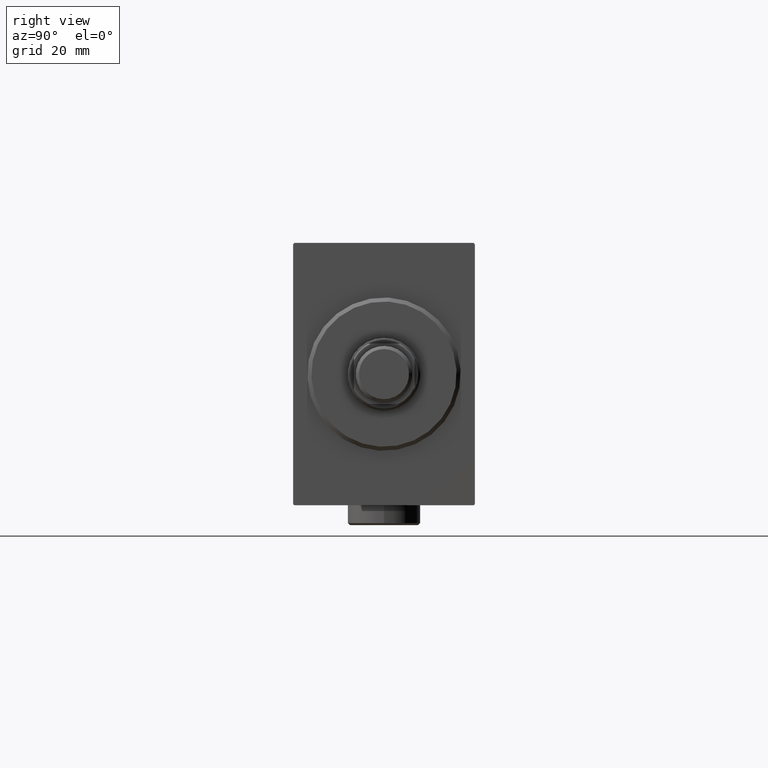
[diagram: clean part render]
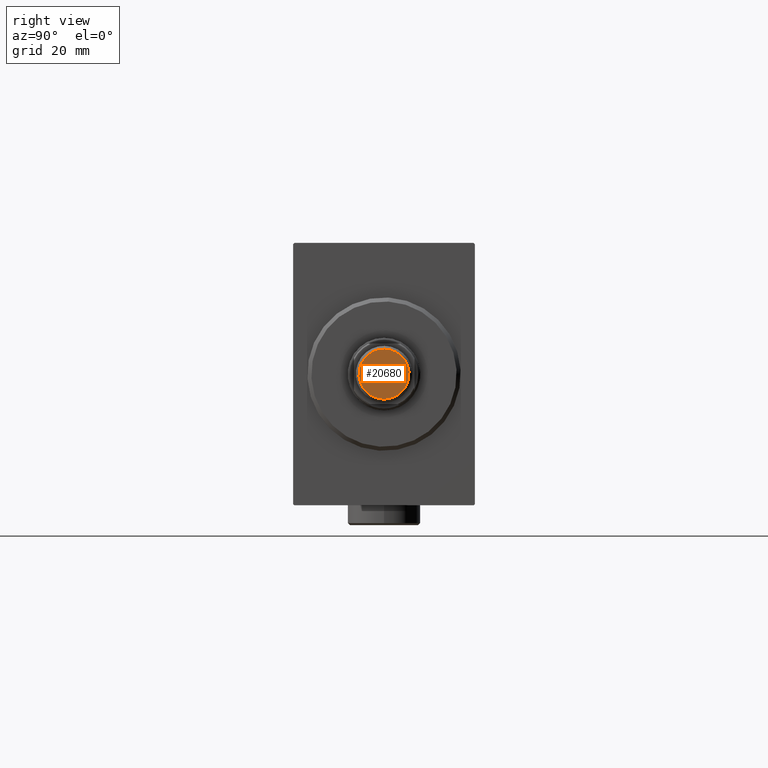
[diagram: same view with one face highlighted and labeled with its STEP entity id]
A machine part, right view. The second image highlights one B-rep face of the part: STEP entity #20680.
In plain terms, the highlighted planar face has unit normal (-1, -0, 0).
Its self-contained STEP definition (entity closure, byte-faithful):
#259 = CARTESIAN_POINT ( 'NONE',  ( 6.199999999999999289, 0.000000000000000000, 0.000000000000000000 ) ) ;
#2904 = AXIS2_PLACEMENT_3D ( 'NONE', #42087, #24580, #4384 ) ;
#4384 = DIRECTION ( 'NONE',  ( 1.000000000000000000, 0.000000000000000000, 0.000000000000000000 ) ) ;
#5267 = CARTESIAN_POINT ( 'NONE',  ( 0.000000000000000000, 0.000000000000000000, 0.000000000000000000 ) ) ;
#5933 = CARTESIAN_POINT ( 'NONE',  ( 0.000000000000000000, 0.000000000000000000, 0.000000000000000000 ) ) ;
#7809 = ORIENTED_EDGE ( 'NONE', *, *, #16563, .T. ) ;
#9639 = AXIS2_PLACEMENT_3D ( 'NONE', #5267, #36250, #18955 ) ;
#11372 = VERTEX_POINT ( 'NONE', #33092 ) ;
#15364 = PLANE ( 'NONE',  #9639 ) ;
#16563 = EDGE_CURVE ( 'NONE', #11372, #24888, #32864, .T. ) ;
#18955 = DIRECTION ( 'NONE',  ( 1.000000000000000000, 0.000000000000000000, -0.000000000000000000 ) ) ;
#19619 = DIRECTION ( 'NONE',  ( 1.000000000000000000, 0.000000000000000000, 0.000000000000000000 ) ) ;
#20680 = ADVANCED_FACE ( 'NONE', ( #43426 ), #15364, .F. ) ;
#24580 = DIRECTION ( 'NONE',  ( -0.000000000000000000, -0.000000000000000000, -1.000000000000000000 ) ) ;
#24888 = VERTEX_POINT ( 'NONE', #259 ) ;
#32864 = CIRCLE ( 'NONE', #38571, 6.199999999999999289 ) ;
#33092 = CARTESIAN_POINT ( 'NONE',  ( -6.199999999999999289, 8.082668874372528061E-16, 0.000000000000000000 ) ) ;
#35818 = DIRECTION ( 'NONE',  ( -0.000000000000000000, -0.000000000000000000, -1.000000000000000000 ) ) ;
#36250 = DIRECTION ( 'NONE',  ( 0.000000000000000000, 0.000000000000000000, 1.000000000000000000 ) ) ;
#38571 = AXIS2_PLACEMENT_3D ( 'NONE', #5933, #35818, #19619 ) ;
#38729 = CIRCLE ( 'NONE', #2904, 6.199999999999999289 ) ;
#39180 = ORIENTED_EDGE ( 'NONE', *, *, #40572, .T. ) ;
#40572 = EDGE_CURVE ( 'NONE', #24888, #11372, #38729, .T. ) ;
#42087 = CARTESIAN_POINT ( 'NONE',  ( 0.000000000000000000, 0.000000000000000000, 0.000000000000000000 ) ) ;
#43307 = EDGE_LOOP ( 'NONE', ( #39180, #7809 ) ) ;
#43426 = FACE_OUTER_BOUND ( 'NONE', #43307, .T. ) ;